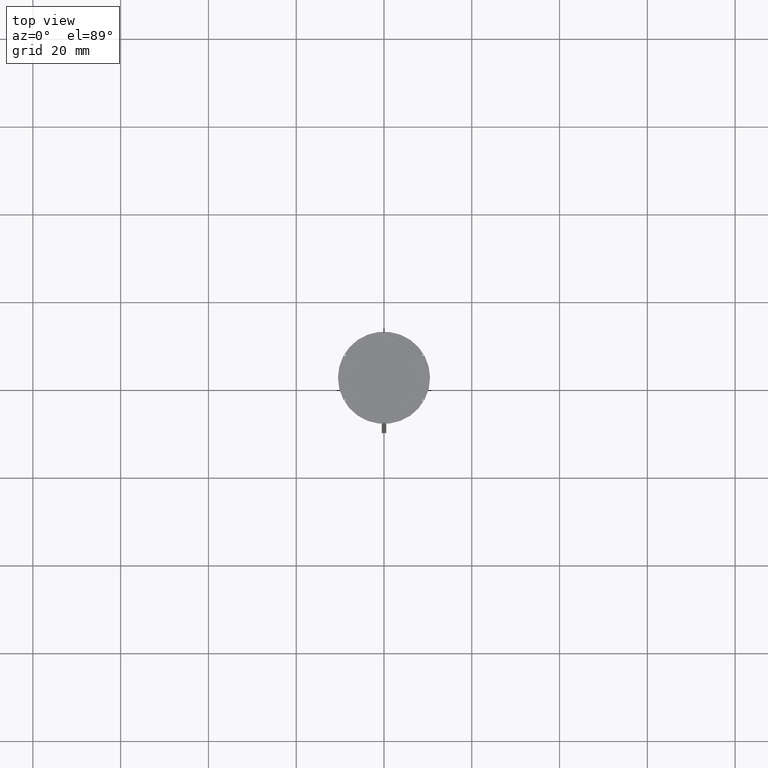
[diagram: clean part render]
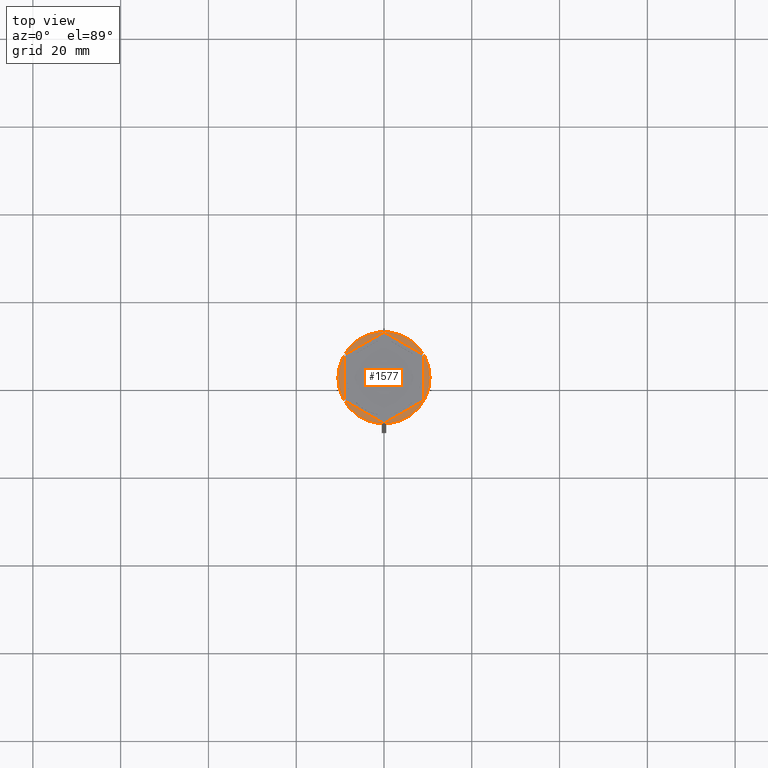
[diagram: same view with one face highlighted and labeled with its STEP entity id]
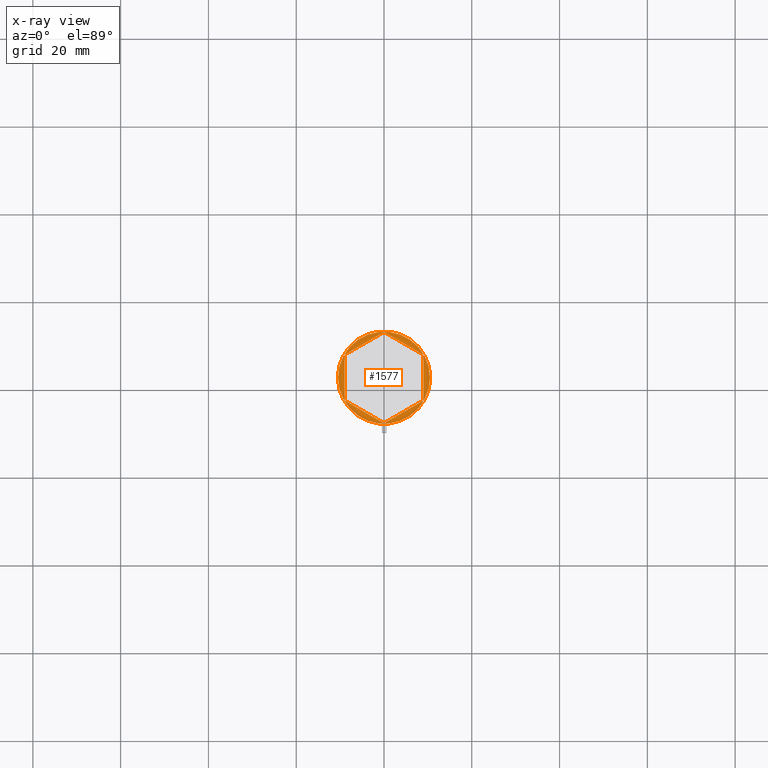
[diagram: x-ray of the same camera — body ghosted, the highlighted face saturated]
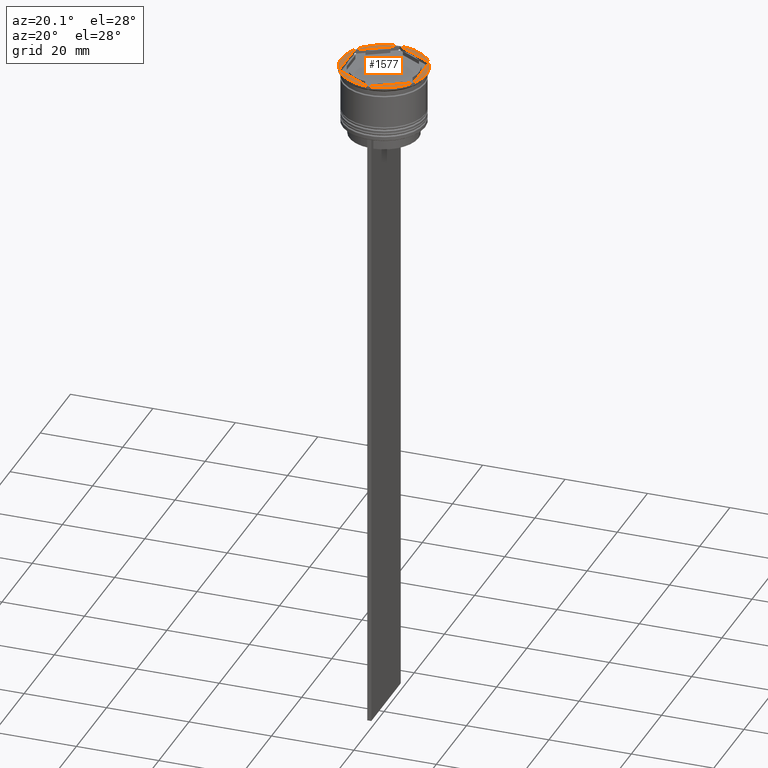
[diagram: same view with one face highlighted and labeled with its STEP entity id]
A machine part, top view. The second image highlights one B-rep face of the part: STEP entity #1577.
The next image is the same camera in x-ray: the body ghosted, the highlighted face saturated — about 0% of this face is hidden behind the body in this view.
A second angle (auxiliary view) of the same face is appended — the face is thin or edge-on in the first view.
In plain terms, the highlighted planar face has unit normal (0, -0, 1).
Its self-contained STEP definition (entity closure, byte-faithful):
#62 = CARTESIAN_POINT ( 'NONE',  ( 0.000000000000000000, 10.39230484541326582, 0.000000000000000000 ) ) ;
#160 = VECTOR ( 'NONE', #1048, 1000.000000000000000 ) ;
#211 = VERTEX_POINT ( 'NONE', #62 ) ;
#218 = DIRECTION ( 'NONE',  ( 0.8660254037844385966, 0.5000000000000001110, 0.000000000000000000 ) ) ;
#233 = VERTEX_POINT ( 'NONE', #1622 ) ;
#269 = DIRECTION ( 'NONE',  ( -0.000000000000000000, -0.000000000000000000, 1.000000000000000000 ) ) ;
#274 = CARTESIAN_POINT ( 'NONE',  ( -9.000000000000001776, -5.196152422706632912, 0.000000000000000000 ) ) ;
#302 = EDGE_CURVE ( 'NONE', #233, #906, #2198, .T. ) ;
#314 = EDGE_CURVE ( 'NONE', #2116, #610, #781, .T. ) ;
#401 = EDGE_CURVE ( 'NONE', #906, #703, #2091, .T. ) ;
#424 = PLANE ( 'NONE',  #1361 ) ;
#437 = DIRECTION ( 'NONE',  ( 0.000000000000000000, -0.000000000000000000, 1.000000000000000000 ) ) ;
#451 = DIRECTION ( 'NONE',  ( 1.000000000000000000, 0.000000000000000000, 0.000000000000000000 ) ) ;
#452 = DIRECTION ( 'NONE',  ( 1.000000000000000000, 0.000000000000000000, 0.000000000000000000 ) ) ;
#551 = EDGE_LOOP ( 'NONE', ( #1389, #755 ) ) ;
#555 = CARTESIAN_POINT ( 'NONE',  ( 9.000000000000001776, 5.196152422706632912, 0.000000000000000000 ) ) ;
#610 = VERTEX_POINT ( 'NONE', #835 ) ;
#670 = FACE_BOUND ( 'NONE', #1006, .T. ) ;
#703 = VERTEX_POINT ( 'NONE', #2212 ) ;
#755 = ORIENTED_EDGE ( 'NONE', *, *, #314, .T. ) ;
#781 = CIRCLE ( 'NONE', #2237, 10.50000000000000000 ) ;
#835 = CARTESIAN_POINT ( 'NONE',  ( 10.50000000000000000, 0.000000000000000000, 0.000000000000000000 ) ) ;
#906 = VERTEX_POINT ( 'NONE', #2491 ) ;
#965 = DIRECTION ( 'NONE',  ( -0.8660254037844385966, 0.5000000000000000000, 0.000000000000000000 ) ) ;
#1006 = EDGE_LOOP ( 'NONE', ( #1268, #1719, #1751, #2470, #1447, #1392 ) ) ;
#1015 = DIRECTION ( 'NONE',  ( -0.000000000000000000, -0.000000000000000000, 1.000000000000000000 ) ) ;
#1048 = DIRECTION ( 'NONE',  ( 0.000000000000000000, -1.000000000000000000, 0.000000000000000000 ) ) ;
#1087 = CARTESIAN_POINT ( 'NONE',  ( 9.000000000000001776, -5.196152422706632024, 0.000000000000000000 ) ) ;
#1231 = LINE ( 'NONE', #2026, #2464 ) ;
#1247 = AXIS2_PLACEMENT_3D ( 'NONE', #2462, #269, #2490 ) ;
#1268 = ORIENTED_EDGE ( 'NONE', *, *, #2244, .F. ) ;
#1361 = AXIS2_PLACEMENT_3D ( 'NONE', #2014, #437, #451 ) ;
#1389 = ORIENTED_EDGE ( 'NONE', *, *, #1979, .T. ) ;
#1392 = ORIENTED_EDGE ( 'NONE', *, *, #1903, .F. ) ;
#1412 = CARTESIAN_POINT ( 'NONE',  ( 0.000000000000000000, 10.39230484541326582, 0.000000000000000000 ) ) ;
#1416 = VECTOR ( 'NONE', #965, 1000.000000000000227 ) ;
#1446 = CARTESIAN_POINT ( 'NONE',  ( -9.000000000000001776, 5.196152422706632024, 0.000000000000000000 ) ) ;
#1447 = ORIENTED_EDGE ( 'NONE', *, *, #2141, .F. ) ;
#1577 = ADVANCED_FACE ( 'NONE', ( #670, #2027 ), #424, .T. ) ;
#1587 = DIRECTION ( 'NONE',  ( -0.8660254037844385966, -0.5000000000000001110, 0.000000000000000000 ) ) ;
#1622 = CARTESIAN_POINT ( 'NONE',  ( 2.607697573705103160E-15, -10.39230484541326405, 0.000000000000000000 ) ) ;
#1633 = CARTESIAN_POINT ( 'NONE',  ( 2.607697573705103160E-15, -10.39230484541326405, 0.000000000000000000 ) ) ;
#1717 = DIRECTION ( 'NONE',  ( 0.000000000000000000, 1.000000000000000000, 0.000000000000000000 ) ) ;
#1719 = ORIENTED_EDGE ( 'NONE', *, *, #401, .F. ) ;
#1748 = CARTESIAN_POINT ( 'NONE',  ( -9.000000000000001776, 5.196152422706632024, 0.000000000000000000 ) ) ;
#1751 = ORIENTED_EDGE ( 'NONE', *, *, #302, .F. ) ;
#1863 = VECTOR ( 'NONE', #1717, 1000.000000000000000 ) ;
#1903 = EDGE_CURVE ( 'NONE', #211, #2262, #2169, .T. ) ;
#1906 = VECTOR ( 'NONE', #218, 1000.000000000000000 ) ;
#1979 = EDGE_CURVE ( 'NONE', #610, #2116, #2419, .T. ) ;
#1999 = DIRECTION ( 'NONE',  ( 0.8660254037844387076, -0.4999999999999997224, 0.000000000000000000 ) ) ;
#2014 = CARTESIAN_POINT ( 'NONE',  ( 0.000000000000000000, 0.000000000000000000, 0.000000000000000000 ) ) ;
#2026 = CARTESIAN_POINT ( 'NONE',  ( -9.000000000000001776, -5.196152422706632912, 0.000000000000000000 ) ) ;
#2027 = FACE_OUTER_BOUND ( 'NONE', #551, .T. ) ;
#2091 = LINE ( 'NONE', #1087, #1863 ) ;
#2116 = VERTEX_POINT ( 'NONE', #2203 ) ;
#2141 = EDGE_CURVE ( 'NONE', #2262, #2216, #2218, .T. ) ;
#2169 = LINE ( 'NONE', #1412, #2463 ) ;
#2198 = LINE ( 'NONE', #1633, #1906 ) ;
#2203 = CARTESIAN_POINT ( 'NONE',  ( -10.50000000000000000, 1.285879139104720831E-15, 0.000000000000000000 ) ) ;
#2212 = CARTESIAN_POINT ( 'NONE',  ( 9.000000000000001776, 5.196152422706632912, 0.000000000000000000 ) ) ;
#2216 = VERTEX_POINT ( 'NONE', #274 ) ;
#2218 = LINE ( 'NONE', #1446, #160 ) ;
#2237 = AXIS2_PLACEMENT_3D ( 'NONE', #2242, #1015, #452 ) ;
#2242 = CARTESIAN_POINT ( 'NONE',  ( 0.000000000000000000, 0.000000000000000000, 0.000000000000000000 ) ) ;
#2244 = EDGE_CURVE ( 'NONE', #703, #211, #2381, .T. ) ;
#2262 = VERTEX_POINT ( 'NONE', #1748 ) ;
#2381 = LINE ( 'NONE', #555, #1416 ) ;
#2419 = CIRCLE ( 'NONE', #1247, 10.50000000000000000 ) ;
#2462 = CARTESIAN_POINT ( 'NONE',  ( 0.000000000000000000, 0.000000000000000000, 0.000000000000000000 ) ) ;
#2463 = VECTOR ( 'NONE', #1587, 1000.000000000000000 ) ;
#2464 = VECTOR ( 'NONE', #1999, 1000.000000000000114 ) ;
#2470 = ORIENTED_EDGE ( 'NONE', *, *, #2471, .F. ) ;
#2471 = EDGE_CURVE ( 'NONE', #2216, #233, #1231, .T. ) ;
#2490 = DIRECTION ( 'NONE',  ( 1.000000000000000000, 0.000000000000000000, 0.000000000000000000 ) ) ;
#2491 = CARTESIAN_POINT ( 'NONE',  ( 9.000000000000001776, -5.196152422706632024, 0.000000000000000000 ) ) ;